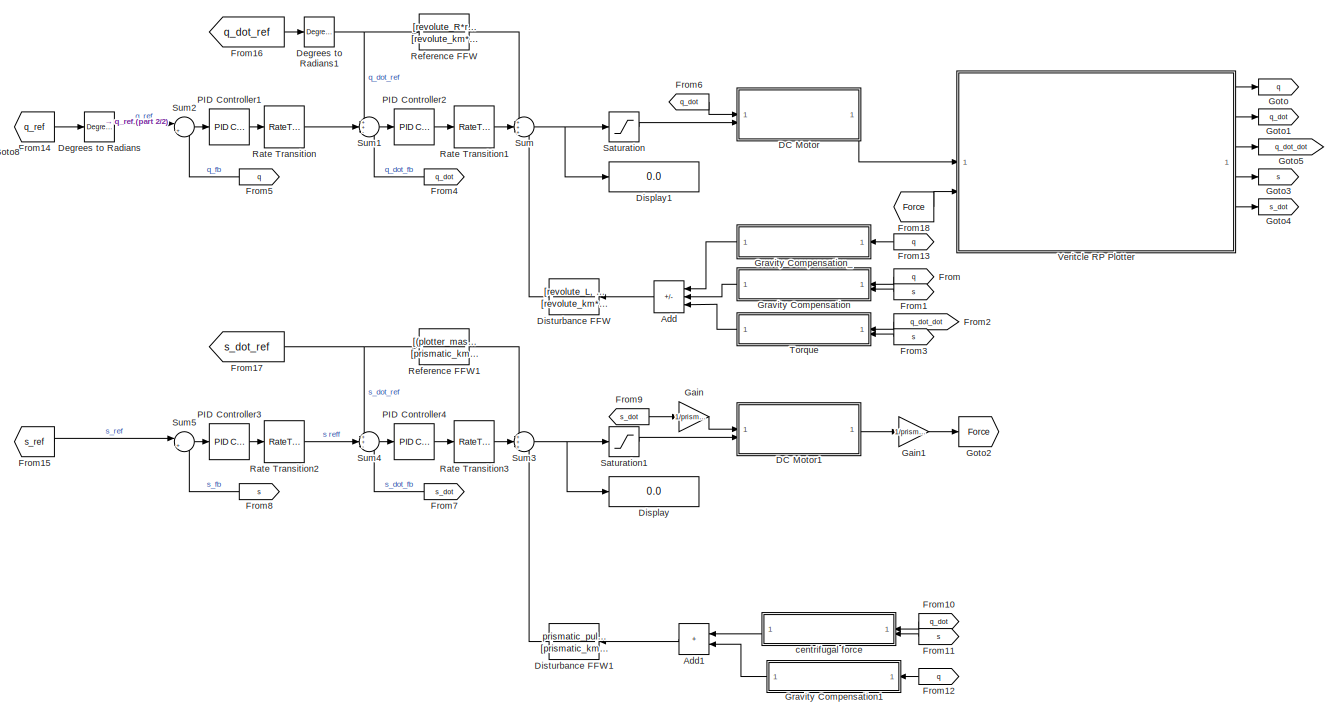
[diagram: root canvas - part 1/2, most of the canvas]
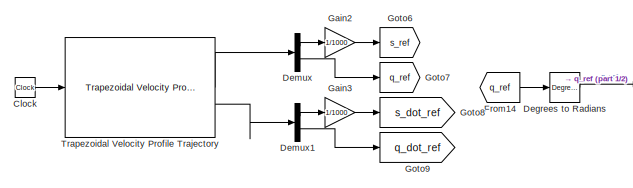
[diagram: root canvas - part 2/2, top left region]
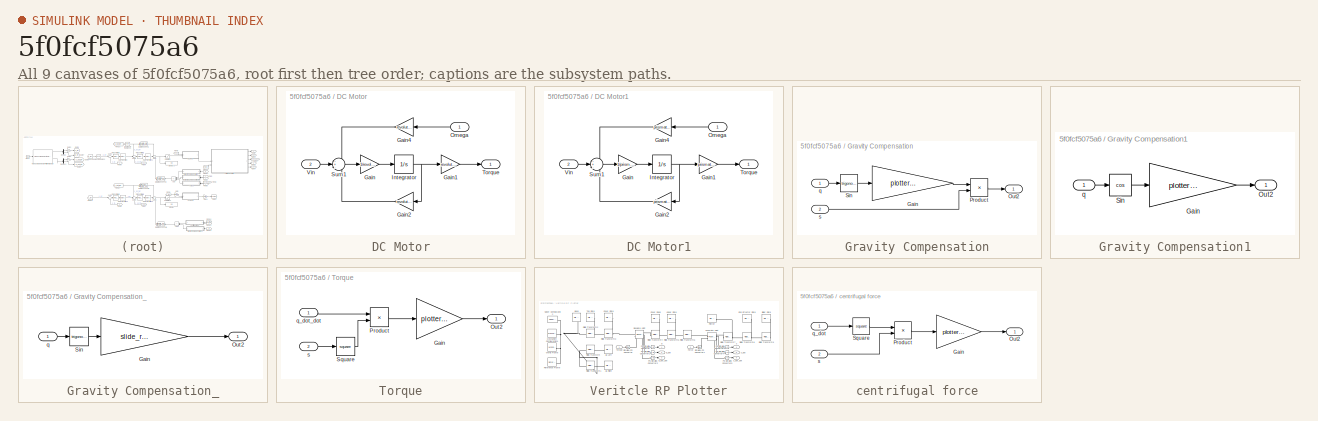
[diagram: thumbnail index - all 9 canvases of the model, root first then tree order]
MODEL slx_5f0fcf5075a6
KIND model
CONFIG AbsTol = auto
CONFIG EnableMultiTasking = off
CONFIG FixedStep = 0.001
CONFIG MaxStep = auto
CONFIG MinStep = auto
CONFIG RelTol = 1e-3
CONFIG SampleTimeConstraint = Unconstrained
CONFIG SolverName = ode1be
CONFIG StartTime = 0.0
CONFIG StopTime = inf
BLOCK [Sum] Add
  IconShape = rectangular
  Inputs = -++
  NameLocation = top
BLOCK [Sum] Add1
  IconShape = rectangular
  NameLocation = top
BLOCK [Clock] Clock
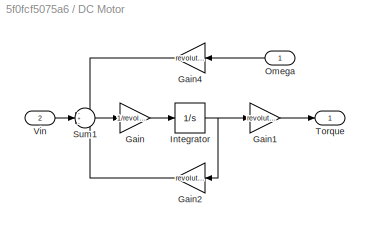
BLOCK [SubSystem] DC Motor
BLOCK [Gain] DC Motor/Gain
  Gain = 1/revolute_L
BLOCK [Gain] DC Motor/Gain1
  Gain = revolute_km
BLOCK [Gain] DC Motor/Gain2
  Gain = revolute_R
  NameLocation = top
BLOCK [Gain] DC Motor/Gain4
  Gain = revolute_ke
  NameLocation = top
BLOCK [Integrator] DC Motor/Integrator
BLOCK [Inport] DC Motor/Omega
BLOCK [Sum] DC Motor/Sum1
  Inputs = -+-
BLOCK [Outport] DC Motor/Torque
BLOCK [Inport] DC Motor/Vin
  Port = 2
BLOCK [SubSystem] DC Motor1
BLOCK [Gain] DC Motor1/Gain
  Gain = 1/prismatic_L
BLOCK [Gain] DC Motor1/Gain1
  Gain = prismatic_km
BLOCK [Gain] DC Motor1/Gain2
  Gain = prismatic_R
  NameLocation = top
BLOCK [Gain] DC Motor1/Gain4
  Gain = prismatic_ke
  NameLocation = top
BLOCK [Integrator] DC Motor1/Integrator
BLOCK [Inport] DC Motor1/Omega
BLOCK [Sum] DC Motor1/Sum1
  Inputs = -+-
BLOCK [Outport] DC Motor1/Torque
BLOCK [Inport] DC Motor1/Vin
  Port = 2
BLOCK [Reference] Degrees to Radians  REF=simulink_extras/Transformations/Degrees to
Radians
  SourceBlock = simulink_extras/Transformations/Degrees to\nRadians
  SourceType = DegreesToRadians
BLOCK [Reference] Degrees to Radians1  REF=simulink_extras/Transformations/Degrees to
Radians
  SourceBlock = simulink_extras/Transformations/Degrees to\nRadians
  SourceType = DegreesToRadians
BLOCK [Demux] Demux
  Outputs = 2
BLOCK [Demux] Demux1
  Outputs = 2
BLOCK [Display] Display
  Decimation = 1
BLOCK [Display] Display1
  Decimation = 1
BLOCK [TransferFcn] Disturbance FFW
  Denominator = [revolute_km*RFFW_t_revolute, revolute_km]
  NameLocation = top
  Numerator = [revolute_L, revolute_R]
BLOCK [TransferFcn] Disturbance FFW1
  Denominator = [prismatic_km*DFFW_t_prismatic, prismatic_km]
  NameLocation = top
  Numerator = prismatic_pulley*[prismatic_L, prismatic_R]
BLOCK [From] From
  GotoTag = q
  NameLocation = top
BLOCK [From] From1
  GotoTag = s
  NameLocation = top
BLOCK [From] From10
  GotoTag = q_dot
  NameLocation = top
BLOCK [From] From11
  GotoTag = s
  NameLocation = top
BLOCK [From] From12
  GotoTag = q
  NameLocation = top
BLOCK [From] From13
  GotoTag = q
  NameLocation = top
BLOCK [From] From14
  GotoTag = q_ref
BLOCK [From] From15
  GotoTag = s_ref
BLOCK [From] From16
  GotoTag = q_dot_ref
BLOCK [From] From17
  GotoTag = s_dot_ref
BLOCK [From] From18
  GotoTag = Force
BLOCK [From] From2
  GotoTag = q_dot_dot
  NameLocation = top
BLOCK [From] From3
  GotoTag = s
  NameLocation = top
BLOCK [From] From4
  GotoTag = q_dot
  NameLocation = top
BLOCK [From] From5
  GotoTag = q
  NameLocation = top
BLOCK [From] From6
  GotoTag = q_dot
BLOCK [From] From7
  GotoTag = s_dot
  NameLocation = top
BLOCK [From] From8
  GotoTag = s
  NameLocation = top
BLOCK [From] From9
  GotoTag = s_dot
BLOCK [Gain] Gain
  Gain = 1/prismatic_pulley
BLOCK [Gain] Gain1
  Gain = 1/prismatic_pulley
BLOCK [Gain] Gain2
  Gain = 1/1000
BLOCK [Gain] Gain3
  Gain = 1/1000
BLOCK [Goto] Goto
  GotoTag = q
BLOCK [Goto] Goto1
  GotoTag = q_dot
BLOCK [Goto] Goto2
  GotoTag = Force
BLOCK [Goto] Goto3
  GotoTag = s
BLOCK [Goto] Goto4
  GotoTag = s_dot
BLOCK [Goto] Goto5
  GotoTag = q_dot_dot
  NameLocation = top
BLOCK [Goto] Goto6
  GotoTag = s_ref
BLOCK [Goto] Goto7
  GotoTag = q_ref
BLOCK [Goto] Goto8
  GotoTag = s_dot_ref
BLOCK [Goto] Goto9
  GotoTag = q_dot_ref
BLOCK [SubSystem] Gravity Compensation
  NameLocation = top
BLOCK [Gain] Gravity Compensation/Gain
  Gain = plotter_mass*g
BLOCK [Outport] Gravity Compensation/Out2
BLOCK [Product] Gravity Compensation/Product
BLOCK [Trigonometry] Gravity Compensation/Sin
BLOCK [Inport] Gravity Compensation/q
BLOCK [Inport] Gravity Compensation/s
  Port = 2
BLOCK [SubSystem] Gravity Compensation1
  NameLocation = top
BLOCK [Gain] Gravity Compensation1/Gain
  Gain = plotter_mass*g
BLOCK [Outport] Gravity Compensation1/Out2
BLOCK [Trigonometry] Gravity Compensation1/Sin
  Operator = cos
BLOCK [Inport] Gravity Compensation1/q
BLOCK [SubSystem] Gravity Compensation_
  NameLocation = top
BLOCK [Gain] Gravity Compensation_/Gain
  Gain = slide_rail_mass*g*64.83/1000
BLOCK [Outport] Gravity Compensation_/Out2
BLOCK [Trigonometry] Gravity Compensation_/Sin
BLOCK [Inport] Gravity Compensation_/q
BLOCK [Reference] PID Controller1  REF=slpidlib/PID Controller
  LibrarySourceBlock = simulink/Continuous/PID Controller
  SourceBlock = slpidlib/PID Controller
  SourceType = PID 1dof
BLOCK [Reference] PID Controller2  REF=slpidlib/PID Controller
  LibrarySourceBlock = simulink/Continuous/PID Controller
  SourceBlock = slpidlib/PID Controller
  SourceType = PID 1dof
BLOCK [Reference] PID Controller3  REF=slpidlib/PID Controller
  LibrarySourceBlock = simulink/Continuous/PID Controller
  SourceBlock = slpidlib/PID Controller
  SourceType = PID 1dof
BLOCK [Reference] PID Controller4  REF=slpidlib/PID Controller
  LibrarySourceBlock = simulink/Continuous/PID Controller
  SourceBlock = slpidlib/PID Controller
  SourceType = PID 1dof
BLOCK [RateTransition] Rate Transition
  OutPortSampleTime = 0.01
BLOCK [RateTransition] Rate Transition1
  OutPortSampleTime = 0.001
BLOCK [RateTransition] Rate Transition2
  OutPortSampleTime = 0.01
BLOCK [RateTransition] Rate Transition3
  OutPortSampleTime = 0.001
BLOCK [TransferFcn] Reference FFW
  Denominator = [revolute_km*RFFW_t_revolute, revolute_km]
  Numerator = [revolute_R*revolute_J, (revolute_B*revolute_R+revolute_km*revolute_ke)]
BLOCK [TransferFcn] Reference FFW1
  Denominator = [prismatic_km*RFFW_t_prismatic, prismatic_km]
  Numerator = [(plotter_mass*prismatic_pulley*prismatic_pulley*prismatic_R)+prismatic_J, prismatic_km*prismatic_ke+prismatic_B*prismatic_R]
BLOCK [Saturate] Saturation
  LowerLimit = -v_max
  UpperLimit = v_max
BLOCK [Saturate] Saturation1
  LowerLimit = -v_max
  UpperLimit = v_max
BLOCK [Sum] Sum
  Inputs = +++
BLOCK [Sum] Sum1
  Inputs = ++-
BLOCK [Sum] Sum2
  Inputs = |+-
BLOCK [Sum] Sum3
  Inputs = +++
BLOCK [Sum] Sum4
  Inputs = ++-
BLOCK [Sum] Sum5
  Inputs = |+-
BLOCK [SubSystem] Torque
  NameLocation = top
BLOCK [Gain] Torque/Gain
  Gain = plotter_mass
BLOCK [Outport] Torque/Out2
BLOCK [Product] Torque/Product
BLOCK [Math] Torque/Square
  Operator = square
BLOCK [Inport] Torque/q_dot_dot
BLOCK [Inport] Torque/s
  Port = 2
BLOCK [Reference] Trapezoidal Velocity Profile Trajectory  REF=robotcorelib/Trapezoidal Velocity Profile Trajectory
  LibrarySourceBlock = robotutilslib/Trapezoidal Velocity Profile Trajectory
  SourceBlock = robotcorelib/Trapezoidal Velocity Profile Trajectory
  SourceType = robotics.slcore.internal.block.TrapVelTrajSys
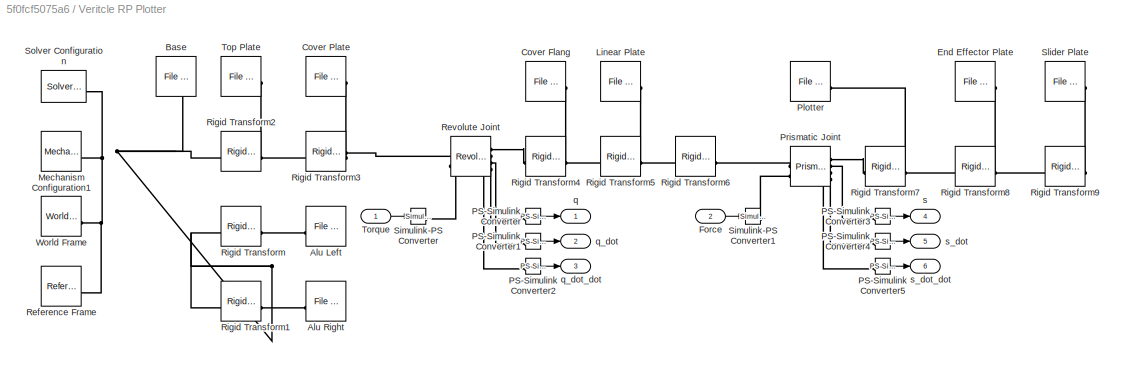
BLOCK [SubSystem] Veritcle RP Plotter
BLOCK [Reference] Veritcle RP Plotter/Alu Left  REF=sm_lib/Body Elements/File Solid
  NameLocation = top
  SourceBlock = sm_lib/Body Elements/File Solid
  SourceType = File Solid
BLOCK [Reference] Veritcle RP Plotter/Alu Right  REF=sm_lib/Body Elements/File Solid
  NameLocation = top
  SourceBlock = sm_lib/Body Elements/File Solid
  SourceType = File Solid
BLOCK [Reference] Veritcle RP Plotter/Base  REF=sm_lib/Body Elements/File Solid
  NameLocation = left
  SourceBlock = sm_lib/Body Elements/File Solid
  SourceType = File Solid
BLOCK [Reference] Veritcle RP Plotter/Cover Flang  REF=sm_lib/Body Elements/File Solid
  SourceBlock = sm_lib/Body Elements/File Solid
  SourceType = File Solid
BLOCK [Reference] Veritcle RP Plotter/Cover Plate  REF=sm_lib/Body Elements/File Solid
  SourceBlock = sm_lib/Body Elements/File Solid
  SourceType = File Solid
BLOCK [Reference] Veritcle RP Plotter/End Effector Plate  REF=sm_lib/Body Elements/File Solid
  SourceBlock = sm_lib/Body Elements/File Solid
  SourceType = File Solid
BLOCK [Inport] Veritcle RP Plotter/Force
  Port = 2
BLOCK [Reference] Veritcle RP Plotter/Linear Plate  REF=sm_lib/Body Elements/File Solid
  SourceBlock = sm_lib/Body Elements/File Solid
  SourceType = File Solid
BLOCK [Reference] Veritcle RP Plotter/Mechanism Configuration1  REF=sm_lib/Utilities/Mechanism
Configuration
  SourceBlock = sm_lib/Utilities/Mechanism\nConfiguration
  SourceType = Mechanism\nConfiguration
BLOCK [Reference] Veritcle RP Plotter/PS-Simulink Converter  REF=nesl_utility/PS-Simulink
Converter
  SourceBlock = nesl_utility/PS-Simulink\nConverter
  SourceType = PS-Simulink\nConverter
BLOCK [Reference] Veritcle RP Plotter/PS-Simulink Converter1  REF=nesl_utility/PS-Simulink
Converter
  SourceBlock = nesl_utility/PS-Simulink\nConverter
  SourceType = PS-Simulink\nConverter
BLOCK [Reference] Veritcle RP Plotter/PS-Simulink Converter2  REF=nesl_utility/PS-Simulink
Converter
  SourceBlock = nesl_utility/PS-Simulink\nConverter
  SourceType = PS-Simulink\nConverter
BLOCK [Reference] Veritcle RP Plotter/PS-Simulink Converter3  REF=nesl_utility/PS-Simulink
Converter
  SourceBlock = nesl_utility/PS-Simulink\nConverter
  SourceType = PS-Simulink\nConverter
BLOCK [Reference] Veritcle RP Plotter/PS-Simulink Converter4  REF=nesl_utility/PS-Simulink
Converter
  SourceBlock = nesl_utility/PS-Simulink\nConverter
  SourceType = PS-Simulink\nConverter
BLOCK [Reference] Veritcle RP Plotter/PS-Simulink Converter5  REF=nesl_utility/PS-Simulink
Converter
  SourceBlock = nesl_utility/PS-Simulink\nConverter
  SourceType = PS-Simulink\nConverter
BLOCK [Reference] Veritcle RP Plotter/Plotter  REF=sm_lib/Body Elements/File Solid
  SourceBlock = sm_lib/Body Elements/File Solid
  SourceType = File Solid
BLOCK [Reference] Veritcle RP Plotter/Prismatic Joint  REF=sm_lib/Joints/Prismatic
Joint
  SourceBlock = sm_lib/Joints/Prismatic\nJoint
  SourceType = Prismatic\nJoint
BLOCK [Reference] Veritcle RP Plotter/Reference Frame  REF=sm_lib/Frames and
Transforms/Reference
Frame
  SourceBlock = sm_lib/Frames and\nTransforms/Reference\nFrame
  SourceType = Reference\nFrame
BLOCK [Reference] Veritcle RP Plotter/Revolute Joint  REF=sm_lib/Joints/Revolute Joint
  SourceBlock = sm_lib/Joints/Revolute Joint
  SourceType = Revolute Joint
BLOCK [Reference] Veritcle RP Plotter/Rigid Transform  REF=sm_lib/Frames and
Transforms/Rigid
Transform
  SourceBlock = sm_lib/Frames and\nTransforms/Rigid\nTransform
  SourceType = Rigid\nTransform
BLOCK [Reference] Veritcle RP Plotter/Rigid Transform1  REF=sm_lib/Frames and
Transforms/Rigid
Transform
  SourceBlock = sm_lib/Frames and\nTransforms/Rigid\nTransform
  SourceType = Rigid\nTransform
BLOCK [Reference] Veritcle RP Plotter/Rigid Transform2  REF=sm_lib/Frames and
Transforms/Rigid
Transform
  SourceBlock = sm_lib/Frames and\nTransforms/Rigid\nTransform
  SourceType = Rigid\nTransform
BLOCK [Reference] Veritcle RP Plotter/Rigid Transform3  REF=sm_lib/Frames and
Transforms/Rigid
Transform
  SourceBlock = sm_lib/Frames and\nTransforms/Rigid\nTransform
  SourceType = Rigid\nTransform
BLOCK [Reference] Veritcle RP Plotter/Rigid Transform4  REF=sm_lib/Frames and
Transforms/Rigid
Transform
  SourceBlock = sm_lib/Frames and\nTransforms/Rigid\nTransform
  SourceType = Rigid\nTransform
BLOCK [Reference] Veritcle RP Plotter/Rigid Transform5  REF=sm_lib/Frames and
Transforms/Rigid
Transform
  SourceBlock = sm_lib/Frames and\nTransforms/Rigid\nTransform
  SourceType = Rigid\nTransform
BLOCK [Reference] Veritcle RP Plotter/Rigid Transform6  REF=sm_lib/Frames and
Transforms/Rigid
Transform
  SourceBlock = sm_lib/Frames and\nTransforms/Rigid\nTransform
  SourceType = Rigid\nTransform
BLOCK [Reference] Veritcle RP Plotter/Rigid Transform7  REF=sm_lib/Frames and
Transforms/Rigid
Transform
  SourceBlock = sm_lib/Frames and\nTransforms/Rigid\nTransform
  SourceType = Rigid\nTransform
BLOCK [Reference] Veritcle RP Plotter/Rigid Transform8  REF=sm_lib/Frames and
Transforms/Rigid
Transform
  SourceBlock = sm_lib/Frames and\nTransforms/Rigid\nTransform
  SourceType = Rigid\nTransform
BLOCK [Reference] Veritcle RP Plotter/Rigid Transform9  REF=sm_lib/Frames and
Transforms/Rigid
Transform
  SourceBlock = sm_lib/Frames and\nTransforms/Rigid\nTransform
  SourceType = Rigid\nTransform
BLOCK [Reference] Veritcle RP Plotter/Simulink-PS Converter  REF=nesl_utility/Simulink-PS
Converter
  SourceBlock = nesl_utility/Simulink-PS\nConverter
  SourceType = Simulink-PS\nConverter
BLOCK [Reference] Veritcle RP Plotter/Simulink-PS Converter1  REF=nesl_utility/Simulink-PS
Converter
  SourceBlock = nesl_utility/Simulink-PS\nConverter
  SourceType = Simulink-PS\nConverter
BLOCK [Reference] Veritcle RP Plotter/Slider Plate  REF=sm_lib/Body Elements/File Solid
  SourceBlock = sm_lib/Body Elements/File Solid
  SourceType = File Solid
BLOCK [Reference] Veritcle RP Plotter/Solver Configuration  REF=nesl_utility/Solver
Configuration
  SourceBlock = nesl_utility/Solver\nConfiguration
  SourceType = Solver\nConfiguration
BLOCK [Reference] Veritcle RP Plotter/Top Plate  REF=sm_lib/Body Elements/File Solid
  SourceBlock = sm_lib/Body Elements/File Solid
  SourceType = File Solid
BLOCK [Inport] Veritcle RP Plotter/Torque
BLOCK [Reference] Veritcle RP Plotter/World Frame  REF=sm_lib/Frames and
Transforms/World Frame
  SourceBlock = sm_lib/Frames and\nTransforms/World Frame
  SourceType = World Frame
BLOCK [Outport] Veritcle RP Plotter/q
  NameLocation = right
BLOCK [Outport] Veritcle RP Plotter/q_dot
  NameLocation = right
  Port = 2
BLOCK [Outport] Veritcle RP Plotter/q_dot_dot
  NameLocation = right
  Port = 3
BLOCK [Outport] Veritcle RP Plotter/s
  NameLocation = right
  Port = 4
BLOCK [Outport] Veritcle RP Plotter/s_dot
  NameLocation = right
  Port = 5
BLOCK [Outport] Veritcle RP Plotter/s_dot_dot
  NameLocation = right
  Port = 6
BLOCK [SubSystem] centrifugal force
  NameLocation = top
BLOCK [Gain] centrifugal force/Gain
  Gain = plotter_mass
BLOCK [Outport] centrifugal force/Out2
BLOCK [Product] centrifugal force/Product
  Inputs = **
BLOCK [Math] centrifugal force/Square
  Operator = square
BLOCK [Inport] centrifugal force/q_dot
BLOCK [Inport] centrifugal force/s
  Port = 2
LINE Add1:1 -> Disturbance FFW1:1
LINE Add:1 -> Disturbance FFW:1
LINE Clock:1 -> Trapezoidal Velocity Profile Trajectory:1
LINE DC Motor/Gain1:1 -> DC Motor/Torque:1
LINE DC Motor/Gain2:1 -> DC Motor/Sum1:3
LINE DC Motor/Gain4:1 -> DC Motor/Sum1:1
LINE DC Motor/Gain:1 -> DC Motor/Integrator:1
NET DC Motor/Integrator:1 -> DC Motor/Gain1:1, DC Motor/Gain2:1
LINE DC Motor/Omega:1 -> DC Motor/Gain4:1
LINE DC Motor/Sum1:1 -> DC Motor/Gain:1
LINE DC Motor/Vin:1 -> DC Motor/Sum1:2
LINE DC Motor1/Gain1:1 -> DC Motor1/Torque:1
LINE DC Motor1/Gain2:1 -> DC Motor1/Sum1:3
LINE DC Motor1/Gain4:1 -> DC Motor1/Sum1:1
LINE DC Motor1/Gain:1 -> DC Motor1/Integrator:1
NET DC Motor1/Integrator:1 -> DC Motor1/Gain1:1, DC Motor1/Gain2:1
LINE DC Motor1/Omega:1 -> DC Motor1/Gain4:1
LINE DC Motor1/Sum1:1 -> DC Motor1/Gain:1
LINE DC Motor1/Vin:1 -> DC Motor1/Sum1:2
LINE DC Motor1:1 -> Gain1:1
LINE DC Motor:1 -> Veritcle RP Plotter:1
NET Degrees to Radians1:1 -> Reference FFW:1, Sum1:1
LINE Degrees to Radians:1 -> Sum2:1
LINE Demux1:1 -> Gain3:1
LINE Demux1:2 -> Goto9:1
LINE Demux:1 -> Gain2:1
LINE Demux:2 -> Goto7:1
LINE Disturbance FFW1:1 -> Sum3:3
LINE Disturbance FFW:1 -> Sum:3
LINE From10:1 -> centrifugal force:1
LINE From11:1 -> centrifugal force:2
LINE From12:1 -> Gravity Compensation1:1
LINE From13:1 -> Gravity Compensation_:1
LINE From14:1 -> Degrees to Radians:1
LINE From15:1 -> Sum5:1
LINE From16:1 -> Degrees to Radians1:1
NET From17:1 -> Reference FFW1:1, Sum4:1
LINE From18:1 -> Veritcle RP Plotter:2
LINE From1:1 -> Gravity Compensation:2
LINE From2:1 -> Torque:1
LINE From3:1 -> Torque:2
LINE From4:1 -> Sum1:3
LINE From5:1 -> Sum2:2
LINE From6:1 -> DC Motor:1
LINE From7:1 -> Sum4:3
LINE From8:1 -> Sum5:2
LINE From9:1 -> Gain:1
LINE From:1 -> Gravity Compensation:1
LINE Gain1:1 -> Goto2:1
LINE Gain2:1 -> Goto6:1
LINE Gain3:1 -> Goto8:1
LINE Gain:1 -> DC Motor1:1
LINE Gravity Compensation/Gain:1 -> Gravity Compensation/Product:1
LINE Gravity Compensation/Product:1 -> Gravity Compensation/Out2:1
LINE Gravity Compensation/Sin:1 -> Gravity Compensation/Gain:1
LINE Gravity Compensation/q:1 -> Gravity Compensation/Sin:1
LINE Gravity Compensation/s:1 -> Gravity Compensation/Product:2
LINE Gravity Compensation1/Gain:1 -> Gravity Compensation1/Out2:1
LINE Gravity Compensation1/Sin:1 -> Gravity Compensation1/Gain:1
LINE Gravity Compensation1/q:1 -> Gravity Compensation1/Sin:1
LINE Gravity Compensation1:1 -> Add1:2
LINE Gravity Compensation:1 -> Add:2
LINE Gravity Compensation_/Gain:1 -> Gravity Compensation_/Out2:1
LINE Gravity Compensation_/Sin:1 -> Gravity Compensation_/Gain:1
LINE Gravity Compensation_/q:1 -> Gravity Compensation_/Sin:1
LINE Gravity Compensation_:1 -> Add:1
LINE PID Controller1:1 -> Rate Transition:1
LINE PID Controller2:1 -> Rate Transition1:1
LINE PID Controller3:1 -> Rate Transition2:1
LINE PID Controller4:1 -> Rate Transition3:1
LINE Rate Transition1:1 -> Sum:2
LINE Rate Transition2:1 -> Sum4:2
LINE Rate Transition3:1 -> Sum3:2
LINE Rate Transition:1 -> Sum1:2
LINE Reference FFW1:1 -> Sum3:1
LINE Reference FFW:1 -> Sum:1
LINE Saturation1:1 -> DC Motor1:2
LINE Saturation:1 -> DC Motor:2
LINE Sum1:1 -> PID Controller2:1
LINE Sum2:1 -> PID Controller1:1
NET Sum3:1 -> Display:1, Saturation1:1
LINE Sum4:1 -> PID Controller4:1
LINE Sum5:1 -> PID Controller3:1
NET Sum:1 -> Display1:1, Saturation:1
LINE Torque/Gain:1 -> Torque/Out2:1
LINE Torque/Product:1 -> Torque/Gain:1
LINE Torque/Square:1 -> Torque/Product:2
LINE Torque/q_dot_dot:1 -> Torque/Product:1
LINE Torque/s:1 -> Torque/Square:1
LINE Torque:1 -> Add:3
LINE Trapezoidal Velocity Profile Trajectory:1 -> Demux:1
LINE Trapezoidal Velocity Profile Trajectory:2 -> Demux1:1
LINE Veritcle RP Plotter/Force:1 -> Veritcle RP Plotter/Simulink-PS Converter1:1
LINE Veritcle RP Plotter/PS-Simulink Converter1:1 -> Veritcle RP Plotter/q_dot:1
LINE Veritcle RP Plotter/PS-Simulink Converter2:1 -> Veritcle RP Plotter/q_dot_dot:1
LINE Veritcle RP Plotter/PS-Simulink Converter3:1 -> Veritcle RP Plotter/s:1
LINE Veritcle RP Plotter/PS-Simulink Converter4:1 -> Veritcle RP Plotter/s_dot:1
LINE Veritcle RP Plotter/PS-Simulink Converter5:1 -> Veritcle RP Plotter/s_dot_dot:1
LINE Veritcle RP Plotter/PS-Simulink Converter:1 -> Veritcle RP Plotter/q:1
LINE Veritcle RP Plotter/Torque:1 -> Veritcle RP Plotter/Simulink-PS Converter:1
LINE Veritcle RP Plotter:1 -> Goto:1
LINE Veritcle RP Plotter:2 -> Goto1:1
LINE Veritcle RP Plotter:3 -> Goto5:1
LINE Veritcle RP Plotter:4 -> Goto3:1
LINE Veritcle RP Plotter:5 -> Goto4:1
LINE centrifugal force/Gain:1 -> centrifugal force/Out2:1
LINE centrifugal force/Product:1 -> centrifugal force/Gain:1
LINE centrifugal force/Square:1 -> centrifugal force/Product:1
LINE centrifugal force/q_dot:1 -> centrifugal force/Square:1
LINE centrifugal force/s:1 -> centrifugal force/Product:2
LINE centrifugal force:1 -> Add1:1
PLINE Veritcle RP Plotter/Alu Left:RConn1 -- Veritcle RP Plotter/Rigid Transform:RConn1
PLINE Veritcle RP Plotter/Alu Right:RConn1 -- Veritcle RP Plotter/Rigid Transform1:RConn1
PNET net1: Veritcle RP Plotter/Base:RConn1 -- Veritcle RP Plotter/Mechanism Configuration1:RConn1 -- Veritcle RP Plotter/Reference Frame:RConn1 -- Veritcle RP Plotter/Rigid Transform1:LConn1 -- Veritcle RP Plotter/Rigid Transform2:LConn1 -- Veritcle RP Plotter/Rigid Transform:LConn1 -- Veritcle RP Plotter/Solver Configuration:RConn1 -- Veritcle RP Plotter/World Frame:RConn1
PNET net2: Veritcle RP Plotter/Cover Flang:RConn1 -- Veritcle RP Plotter/Rigid Transform4:RConn1 -- Veritcle RP Plotter/Rigid Transform5:LConn1
PNET net3: Veritcle RP Plotter/Cover Plate:RConn1 -- Veritcle RP Plotter/Revolute Joint:LConn1 -- Veritcle RP Plotter/Rigid Transform3:RConn1
PNET net4: Veritcle RP Plotter/End Effector Plate:RConn1 -- Veritcle RP Plotter/Rigid Transform8:RConn1 -- Veritcle RP Plotter/Rigid Transform9:LConn1
PNET net5: Veritcle RP Plotter/Linear Plate:RConn1 -- Veritcle RP Plotter/Rigid Transform5:RConn1 -- Veritcle RP Plotter/Rigid Transform6:LConn1
PLINE Veritcle RP Plotter/PS-Simulink Converter1:LConn1 -- Veritcle RP Plotter/Revolute Joint:RConn3
PLINE Veritcle RP Plotter/PS-Simulink Converter2:LConn1 -- Veritcle RP Plotter/Revolute Joint:RConn4
PLINE Veritcle RP Plotter/PS-Simulink Converter3:LConn1 -- Veritcle RP Plotter/Prismatic Joint:RConn2
PLINE Veritcle RP Plotter/PS-Simulink Converter4:LConn1 -- Veritcle RP Plotter/Prismatic Joint:RConn3
PLINE Veritcle RP Plotter/PS-Simulink Converter5:LConn1 -- Veritcle RP Plotter/Prismatic Joint:RConn4
PLINE Veritcle RP Plotter/PS-Simulink Converter:LConn1 -- Veritcle RP Plotter/Revolute Joint:RConn2
PNET net6: Veritcle RP Plotter/Plotter:RConn1 -- Veritcle RP Plotter/Rigid Transform7:RConn1 -- Veritcle RP Plotter/Rigid Transform8:LConn1
PLINE Veritcle RP Plotter/Prismatic Joint:LConn1 -- Veritcle RP Plotter/Rigid Transform6:RConn1
PLINE Veritcle RP Plotter/Prismatic Joint:LConn2 -- Veritcle RP Plotter/Simulink-PS Converter1:RConn1
PLINE Veritcle RP Plotter/Prismatic Joint:RConn1 -- Veritcle RP Plotter/Rigid Transform7:LConn1
PLINE Veritcle RP Plotter/Revolute Joint:LConn2 -- Veritcle RP Plotter/Simulink-PS Converter:RConn1
PLINE Veritcle RP Plotter/Revolute Joint:RConn1 -- Veritcle RP Plotter/Rigid Transform4:LConn1
PNET net7: Veritcle RP Plotter/Rigid Transform2:RConn1 -- Veritcle RP Plotter/Rigid Transform3:LConn1 -- Veritcle RP Plotter/Top Plate:RConn1
PLINE Veritcle RP Plotter/Rigid Transform9:RConn1 -- Veritcle RP Plotter/Slider Plate:RConn1
note: NET lines group one-source signal fan-out (src -> all destinations, sorted); 1:1 wires keep LINE; PNET lines group multi-terminal physical nets as a canonical sorted terminal list (undirected conserving connections); 2-terminal nets keep the pairwise PLINE form
